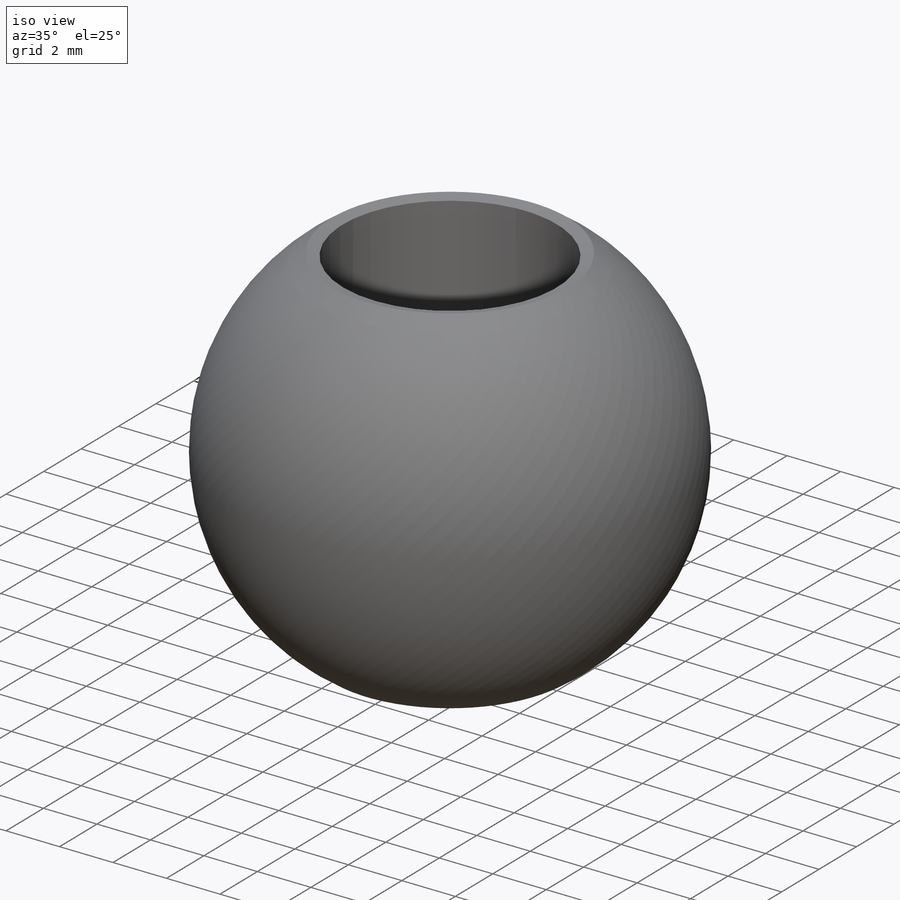
[diagram: iso view]
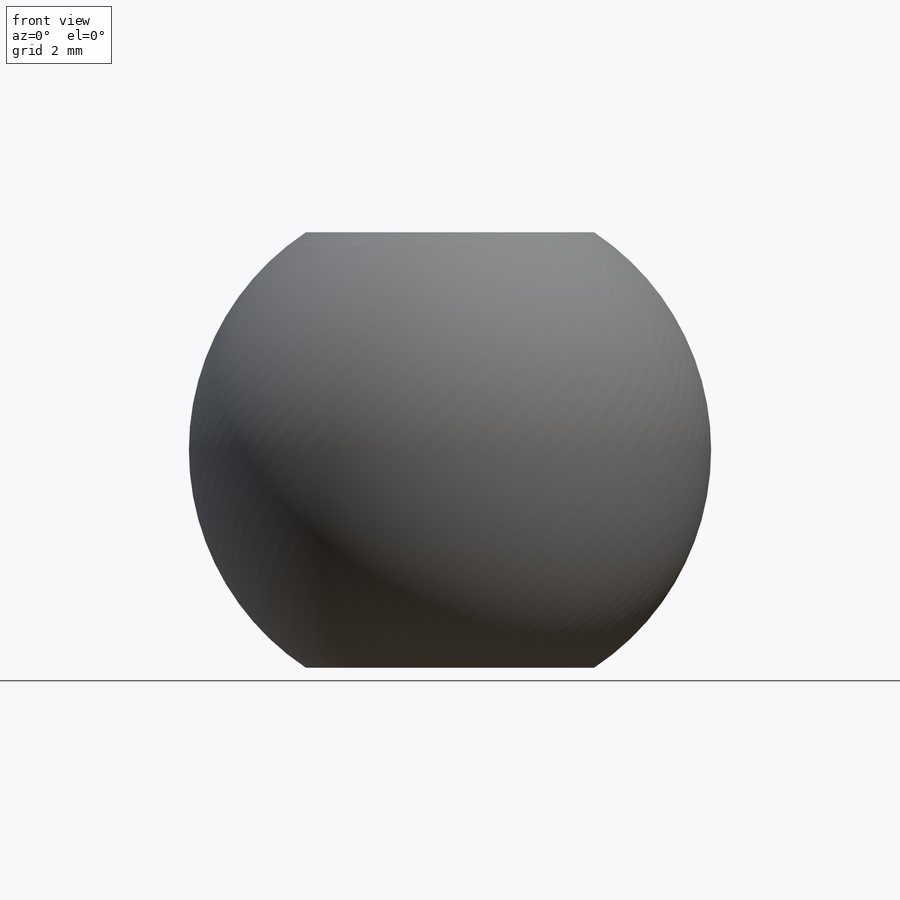
[diagram: front view]
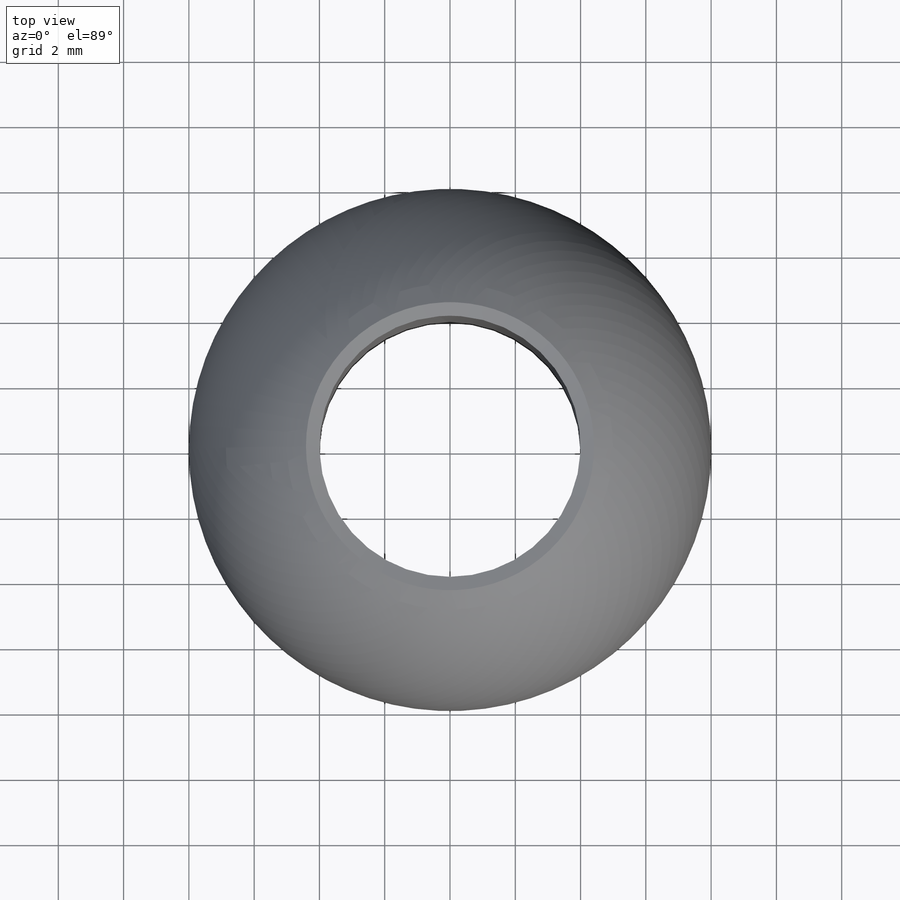
[diagram: top view]
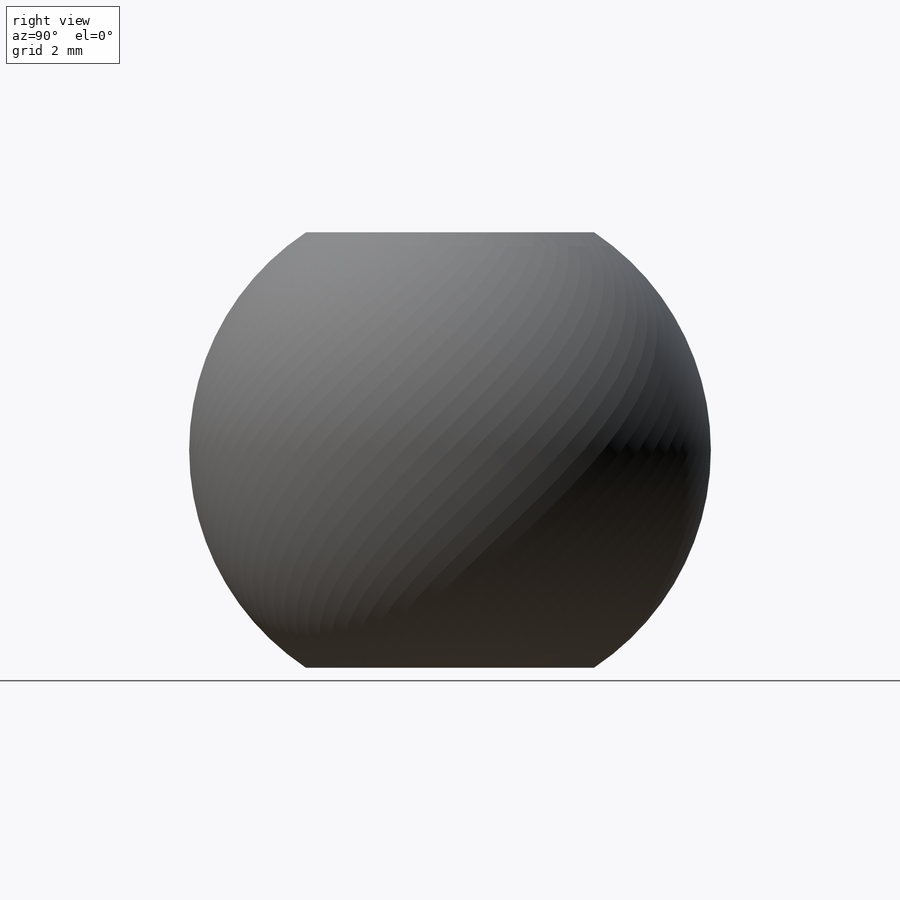
[diagram: right view]
SOLIDWORKS PART (.sldprt)
format: sldprt  version: not decoded by parser v0  size: 194,048 bytes
history: native  units: mm
features: plane x3, sketch x2, material x1, revolve x1, cut_extrude x1, chamfer x1 (+10 scaffold rows collapsed)
feature tree (19):
  scaffold x10  (default folders/planes/origin — collapsed)
  material  "Acero inoxidable al cromo"
  plane  "Alzado"
  plane  "Planta"
  plane  "Vista lateral"
  sketch  "Croquis1"  dims[D1=4.0mm]
  revolve  "Revolución1"  Angle=360deg
  sketch  "Croquis3"  dims[D1=~4.601155mm]
  cut_extrude  "Cortar-Extruir1"  Depth=10mm
  chamfer  "Chaflán1"  Distance=0.5mm Angle=45deg
decode coverage: 5 of 5 modeling features carry decoded parameters
note: ~ marks probable driven/reference dimensions
note: suppression state not decoded; provenance and decode notes live in map.json
